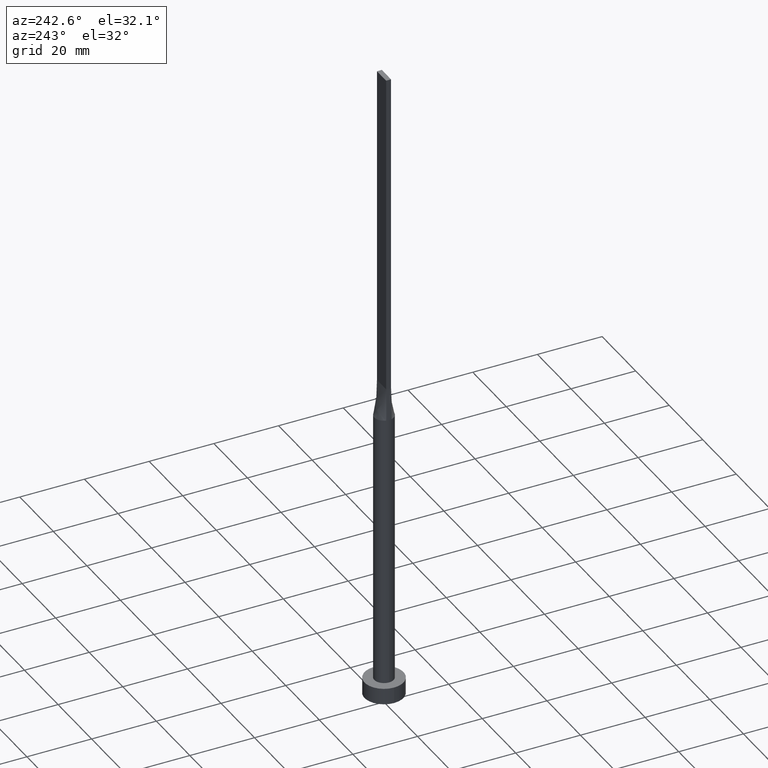
[diagram: clean part render]
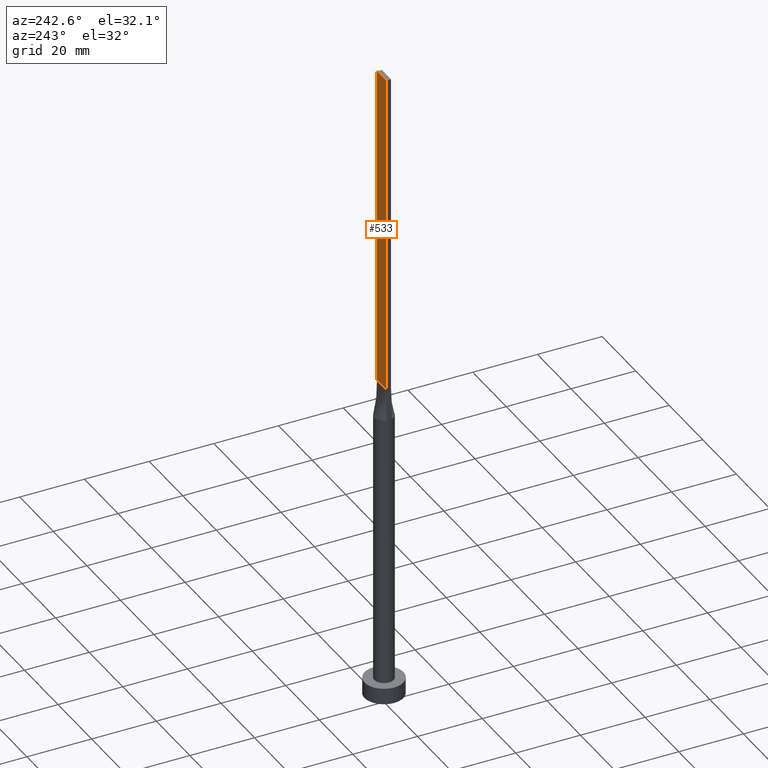
[diagram: same view with one face highlighted and labeled with its STEP entity id]
A machine part, auxiliary view. The second image highlights one B-rep face of the part: STEP entity #533.
In plain terms, the highlighted planar face has unit normal (0, -1, 0).
Its self-contained STEP definition (entity closure, byte-faithful):
#14 = LINE ( 'NONE', #339, #76 ) ;
#16 = PLANE ( 'NONE',  #145 ) ;
#17 = EDGE_LOOP ( 'NONE', ( #226, #577, #25, #137 ) ) ;
#25 = ORIENTED_EDGE ( 'NONE', *, *, #220, .F. ) ;
#42 = LINE ( 'NONE', #233, #318 ) ;
#76 = VECTOR ( 'NONE', #113, 1000.000000000000000 ) ;
#79 = CARTESIAN_POINT ( 'NONE',  ( -2.750000000000000000, 0.7500000000000002220, 100.0000000000000000 ) ) ;
#106 = EDGE_CURVE ( 'NONE', #463, #338, #42, .T. ) ;
#113 = DIRECTION ( 'NONE',  ( -0.000000000000000000, -0.000000000000000000, -1.000000000000000000 ) ) ;
#125 = CARTESIAN_POINT ( 'NONE',  ( 2.750000000000000000, 0.7500000000000002220, 200.0000000000000000 ) ) ;
#126 = CARTESIAN_POINT ( 'NONE',  ( 2.750000000000000000, 0.7500000000000002220, 200.0000000000000000 ) ) ;
#127 = VECTOR ( 'NONE', #290, 1000.000000000000000 ) ;
#137 = ORIENTED_EDGE ( 'NONE', *, *, #449, .T. ) ;
#145 = AXIS2_PLACEMENT_3D ( 'NONE', #389, #208, #553 ) ;
#161 = DIRECTION ( 'NONE',  ( -1.000000000000000000, -0.000000000000000000, -0.000000000000000000 ) ) ;
#165 = CARTESIAN_POINT ( 'NONE',  ( 2.750000000000000000, 0.7500000000000002220, 200.0000000000000000 ) ) ;
#183 = CARTESIAN_POINT ( 'NONE',  ( -2.750000000000000000, 0.7500000000000002220, 200.0000000000000000 ) ) ;
#208 = DIRECTION ( 'NONE',  ( 0.000000000000000000, -1.000000000000000000, 0.000000000000000000 ) ) ;
#220 = EDGE_CURVE ( 'NONE', #300, #571, #486, .T. ) ;
#226 = ORIENTED_EDGE ( 'NONE', *, *, #106, .T. ) ;
#233 = CARTESIAN_POINT ( 'NONE',  ( -2.750000000000000000, 0.7500000000000002220, 100.0000000000000000 ) ) ;
#258 = FACE_OUTER_BOUND ( 'NONE', #17, .T. ) ;
#264 = LINE ( 'NONE', #126, #127 ) ;
#290 = DIRECTION ( 'NONE',  ( -0.000000000000000000, -0.000000000000000000, -1.000000000000000000 ) ) ;
#300 = VERTEX_POINT ( 'NONE', #165 ) ;
#306 = DIRECTION ( 'NONE',  ( -1.000000000000000000, 0.000000000000000000, 0.000000000000000000 ) ) ;
#313 = EDGE_CURVE ( 'NONE', #571, #338, #14, .T. ) ;
#318 = VECTOR ( 'NONE', #161, 1000.000000000000000 ) ;
#338 = VERTEX_POINT ( 'NONE', #79 ) ;
#339 = CARTESIAN_POINT ( 'NONE',  ( -2.750000000000000000, 0.7500000000000002220, 200.0000000000000000 ) ) ;
#385 = CARTESIAN_POINT ( 'NONE',  ( 2.750000000000000000, 0.7500000000000002220, 100.0000000000000000 ) ) ;
#389 = CARTESIAN_POINT ( 'NONE',  ( 2.750000000000000000, 0.7500000000000002220, 200.0000000000000000 ) ) ;
#397 = VECTOR ( 'NONE', #306, 1000.000000000000000 ) ;
#449 = EDGE_CURVE ( 'NONE', #300, #463, #264, .T. ) ;
#463 = VERTEX_POINT ( 'NONE', #385 ) ;
#486 = LINE ( 'NONE', #125, #397 ) ;
#533 = ADVANCED_FACE ( 'NONE', ( #258 ), #16, .F. ) ;
#553 = DIRECTION ( 'NONE',  ( 0.000000000000000000, -0.000000000000000000, -1.000000000000000000 ) ) ;
#571 = VERTEX_POINT ( 'NONE', #183 ) ;
#577 = ORIENTED_EDGE ( 'NONE', *, *, #313, .F. ) ;